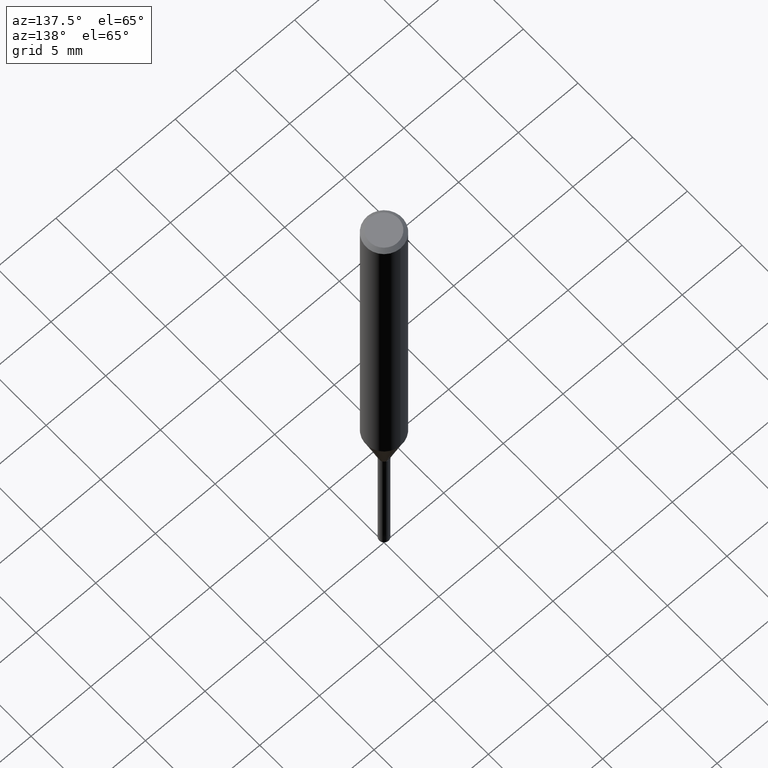
[diagram: clean part render]
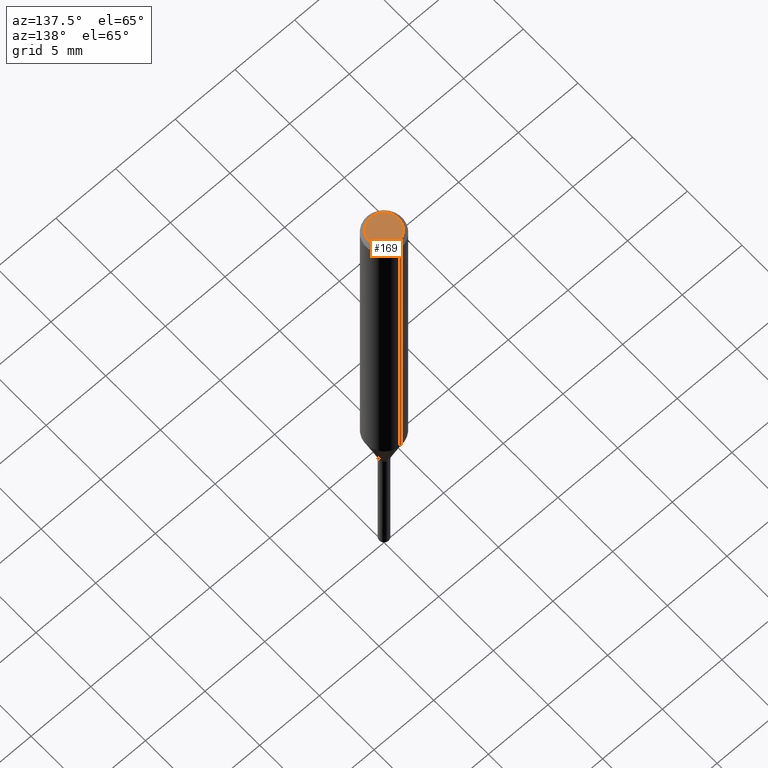
[diagram: same view with one face highlighted and labeled with its STEP entity id]
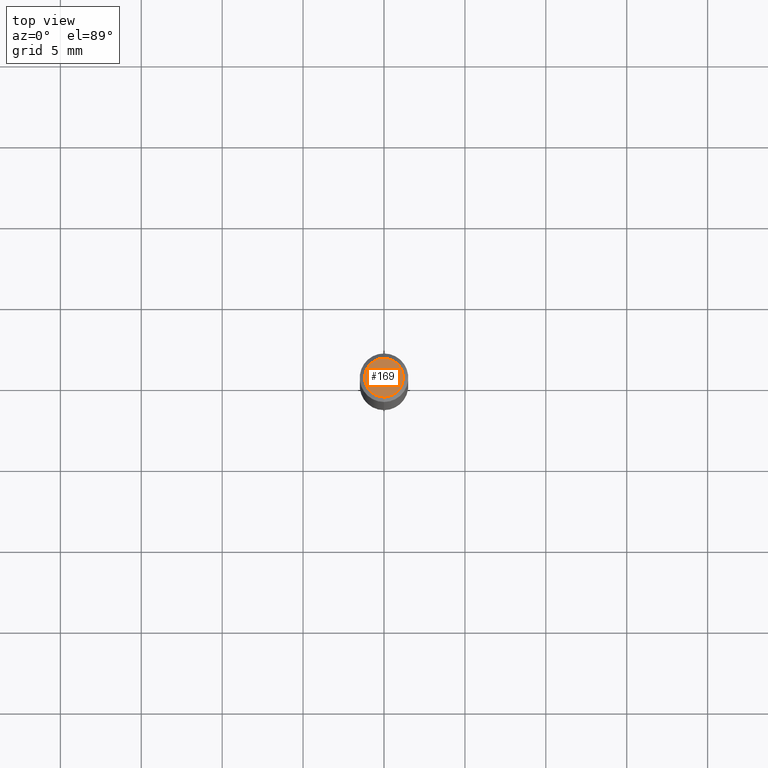
[diagram: same view with one face highlighted and labeled with its STEP entity id]
A machine part, auxiliary view. The second image highlights one B-rep face of the part: STEP entity #169.
A second angle (top view) of the same face is appended — the face is thin or edge-on in the first view.
In plain terms, the highlighted planar face has unit normal (-0, 0, 1).
Its self-contained STEP definition (entity closure, byte-faithful):
#115=EDGE_CURVE('',#157,#163,#255,.T.);
#127=EDGE_CURVE('',#163,#157,#269,.T.);
#157=VERTEX_POINT('',#303);
#163=VERTEX_POINT('',#309);
#169=ADVANCED_FACE('',(#316),#317,.T.);
#255=CIRCLE('',#407,1.2);
#269=CIRCLE('',#424,1.2);
#303=CARTESIAN_POINT('',(0.0,1.2,0.0));
#309=CARTESIAN_POINT('',(1.46952762458685E-016,-1.2,0.0));
#316=FACE_OUTER_BOUND('',#479,.T.);
#317=PLANE('',#480);
#407=AXIS2_PLACEMENT_3D('',#586,#587,#588);
#424=AXIS2_PLACEMENT_3D('',#609,#610,#611);
#479=EDGE_LOOP('',(#659,#660));
#480=AXIS2_PLACEMENT_3D('',#661,#662,#663);
#586=CARTESIAN_POINT('',(0.0,0.0,0.0));
#587=DIRECTION('',(0.0,0.0,-1.0));
#588=DIRECTION('',(0.0,1.0,0.0));
#609=CARTESIAN_POINT('',(0.0,0.0,0.0));
#610=DIRECTION('',(0.0,0.0,-1.0));
#611=DIRECTION('',(0.0,1.0,0.0));
#659=ORIENTED_EDGE('',*,*,#115,.F.);
#660=ORIENTED_EDGE('',*,*,#127,.F.);
#661=CARTESIAN_POINT('',(0.0,0.6,0.0));
#662=DIRECTION('',(-0.0,0.0,1.0));
#663=DIRECTION('',(0.0,-1.0,0.0));